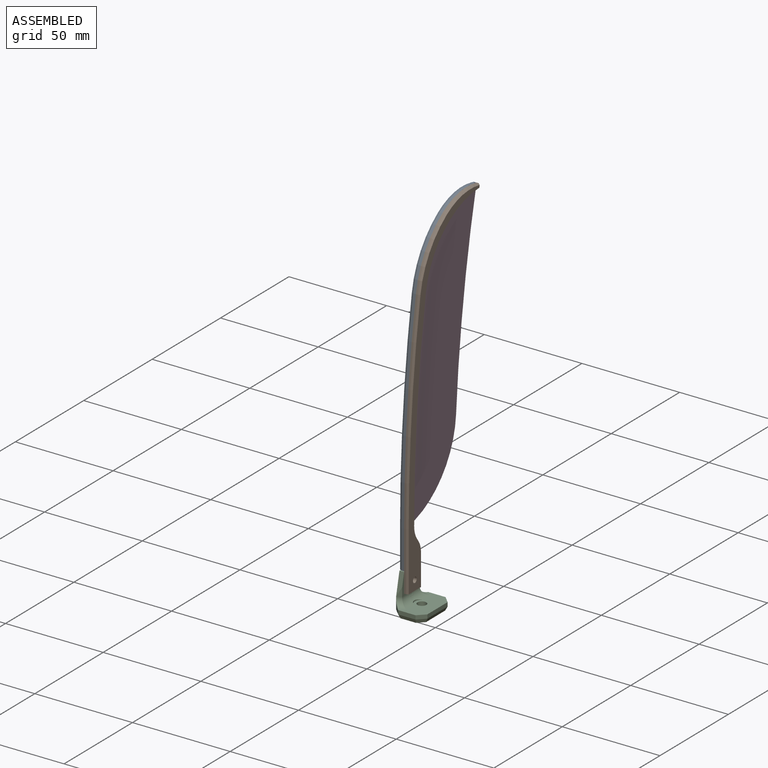
[diagram: assembled view]
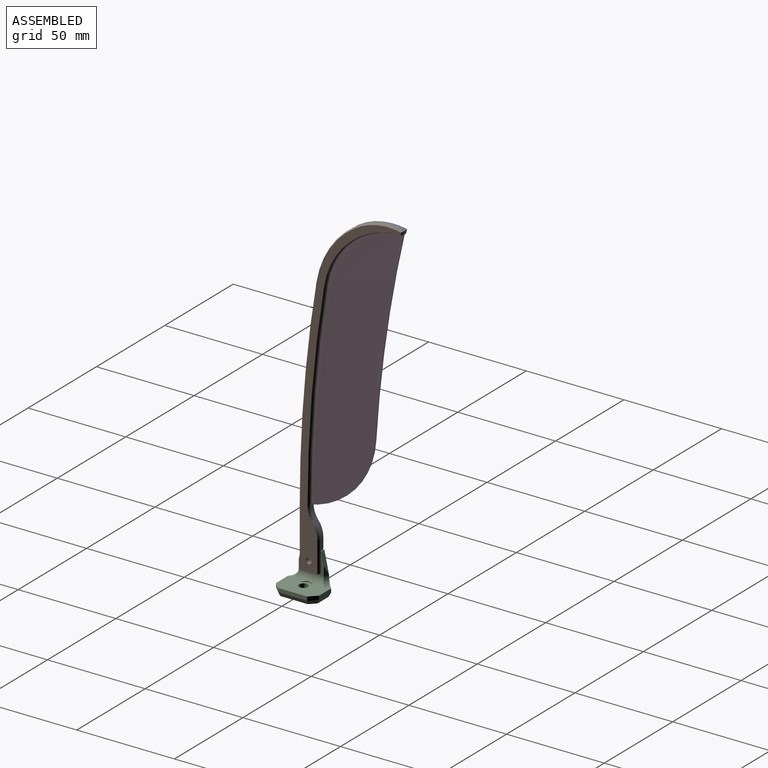
[diagram: assembled view, second angle]
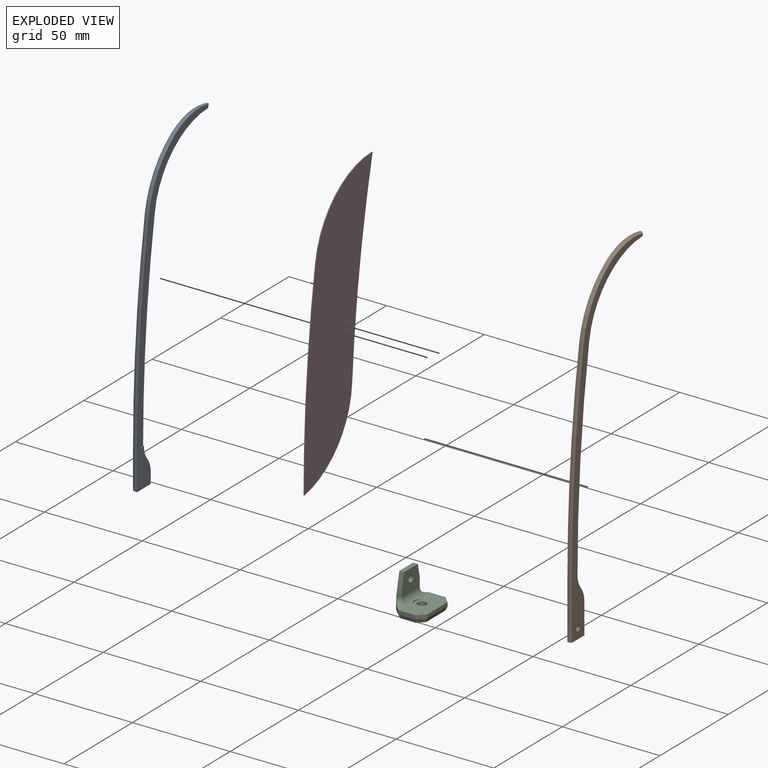
[diagram: exploded view]
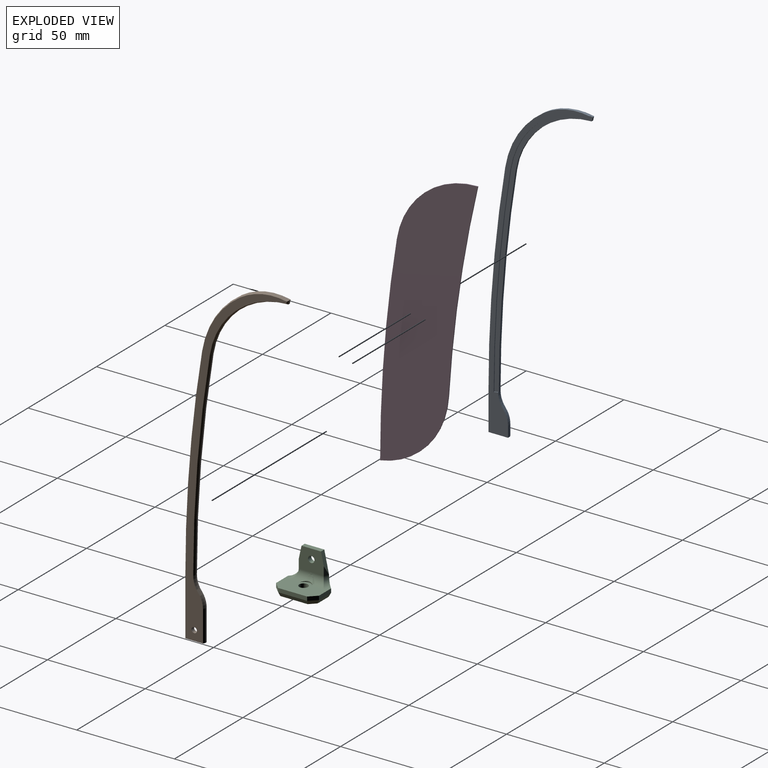
[diagram: exploded view, second angle]
ASSEMBLY  parts=4 mates=3
PART A: 29 faces, bbox 2.4x53x160.4 mm
  f0: plane 140.63x50.3mm, normal (1,0,0), area 374.7mm2, adj f6,f7,f8,f9,f13,f14,f15,f16
  f1: plane 19.6x1.4mm, normal (0,-1,0), area 27.4mm2, adj f2,f11,f17,f19
  f2: plane 10x2.4mm, normal (0,0,-1), area 23.5mm2, adj f1,f3,f12,f17,f19,f28
  f3: plane 5.6x1.4mm, normal (0,1,0), area 7.8mm2, adj f2,f4,f17,f28
  f4: cylinder r=11.05mm len=7mm, axis (-1,0,0), area 10.6mm2, adj f3,f5,f17,f27
  f5: cylinder r=11.05mm len=7.08mm, axis (-1,0,0), area 10.6mm2, adj f4,f6,f13,f17,f18,f26
  f6: cylinder r=644.25mm len=104.49mm, axis (-1,0,0), area 105mm2, adj f0,f5,f7,f18,f25
  f7: cylinder r=40mm len=39mm, axis (-1,0,0), area 55.8mm2, adj f0,f6,f8,f24
  f8: cylinder r=612.47mm len=2mm, axis (-1,0,0), area 2.1mm2, adj f0,f7,f9,f23
  f9: cylinder r=32mm len=24.94mm, axis (-1,0,0), area 35.9mm2, adj f0,f8,f10,f16,f17,f22
  f10: cylinder r=45mm len=30.16mm, axis (-1,0,0), area 51.7mm2, adj f9,f11,f17,f21
  f11: cylinder r=649.25mm len=105.3mm, axis (-1,0,0), area 148.1mm2, adj f1,f10,f17,f20
  f12: plane 159.92x51.9mm, normal (-1,0,0), area 774.6mm2, adj f2,f19,f20,f21,f22,f23,f24,f25
  f13: cylinder r=42.3mm len=2.3mm, axis (-1,0,0), area 0.9mm2, adj f0,f5,f14,f17,f18
  f14: plane 0.4x0.35mm, normal (0,1,0), area 0.1mm2, adj f0,f13,f15,f17
  f15: cylinder r=646.55mm len=104.86mm, axis (-1,0,0), area 42.1mm2, adj f0,f14,f16,f17
  f16: cylinder r=42.3mm len=40.4mm, axis (-1,0,0), area 23.3mm2, adj f0,f9,f15,f17
  f17: plane 160.42x51.66mm, normal (1,0,0), area 585.3mm2, adj f1,f2,f3,f4,f5,f9,f10,f11
  f18: plane 0.08x0mm, normal (-1,0,0), area 0mm2, adj f5,f6,f13
  f19: plane 19.6x1mm, normal (-0.45,-0.89,0), area 21.9mm2, adj f1,f2,f12,f20
  f20: cone r=649.25mm half-angle=26.6deg, axis (1,0,0), area 118.2mm2, adj f11,f12,f19,f21
  f21: cone r=45mm half-angle=26.6deg, axis (1,0,0), area 41.1mm2, adj f10,f12,f20,f22
  f22: cone r=32mm half-angle=26.6deg, axis (1,0,0), area 28.6mm2, adj f9,f12,f21,f23
  f23: cone r=612.97mm half-angle=26.6deg, axis (-1,0,0), area 1.8mm2, adj f8,f12,f22,f24
  f24: cone r=40.5mm half-angle=26.6deg, axis (-1,0,0), area 62.6mm2, adj f7,f12,f23,f25
  f25: cone r=644.75mm half-angle=26.6deg, axis (-1,0,0), area 117.4mm2, adj f6,f12,f24,f26
  f26: cone r=11.55mm half-angle=26.6deg, axis (-1,0,0), area 8.7mm2, adj f5,f12,f25,f27
  f27: cone r=11.05mm half-angle=26.6deg, axis (1,0,0), area 8.3mm2, adj f4,f12,f26,f28
  f28: plane 5.6x1mm, normal (-0.45,0.89,0), area 6.3mm2, adj f2,f3,f12,f27
PART B: 24 faces, bbox 2x53x170.8 mm
  f0: plane 2x1mm, normal (0,0.97,-0.23), area 2.1mm2, adj f1,f11,f13,f18
  f1: cylinder r=32mm len=24.94mm, axis (-1,0,0), area 26.1mm2, adj f0,f2,f13,f17
  f2: cylinder r=45mm len=30.16mm, axis (-1,0,0), area 36.9mm2, adj f1,f3,f13,f16
  f3: cylinder r=649.25mm len=105.3mm, axis (-1,0,0), area 105.8mm2, adj f2,f4,f13,f15
  f4: plane 30x1mm, normal (0,-1,0), area 30mm2, adj f3,f5,f13,f14
  f5: plane 10x2mm, normal (0,0,-1), area 19.5mm2, adj f4,f6,f12,f13,f14,f23
  f6: plane 16x1mm, normal (0,1,0), area 16mm2, adj f5,f7,f13,f23
  f7: cylinder r=11.05mm len=7mm, axis (-1,0,0), area 7.6mm2, adj f6,f8,f13,f22
  f8: cylinder r=11.05mm len=7mm, axis (-1,0,0), area 7.6mm2, adj f7,f9,f13,f21
  f9: cylinder r=644.25mm len=104.49mm, axis (-1,0,0), area 105mm2, adj f8,f11,f13,f20
  f10: cylinder r=1.4mm len=2.8mm, axis (-1,0,0), area 17.6mm2, adj f12,f13
  f11: cylinder r=40mm len=39mm, axis (-1,0,0), area 55.8mm2, adj f0,f9,f13,f19
  f12: plane 170.32x51.9mm, normal (1,0,0), area 862mm2, adj f5,f10,f14,f15,f16,f17,f18,f19
  f13: plane 170.82x53mm, normal (-1,0,0), area 1057.9mm2, adj f0,f1,f2,f3,f4,f5,f6,f7
  f14: plane 30x1mm, normal (0.45,-0.89,0), area 33.5mm2, adj f4,f5,f12,f15
  f15: cone r=648.75mm half-angle=26.6deg, axis (-1,0,0), area 118.2mm2, adj f3,f12,f14,f16
  f16: cone r=44.5mm half-angle=26.6deg, axis (-1,0,0), area 41.1mm2, adj f2,f12,f15,f17
  f17: cone r=31.5mm half-angle=26.6deg, axis (-1,0,0), area 28.6mm2, adj f1,f12,f16,f18
  f18: plane 2.01x1mm, normal (0.45,0.87,-0.2), area 1.8mm2, adj f0,f12,f17,f19
  f19: cone r=40mm half-angle=26.6deg, axis (1,0,0), area 62.6mm2, adj f11,f12,f18,f20
  f20: cone r=644.25mm half-angle=26.6deg, axis (1,0,0), area 117.4mm2, adj f9,f12,f19,f21
  f21: cone r=11.05mm half-angle=26.6deg, axis (1,0,0), area 8.7mm2, adj f8,f12,f20,f22
  f22: cone r=10.55mm half-angle=26.6deg, axis (-1,0,0), area 8.3mm2, adj f7,f12,f21,f23
  f23: plane 16x1mm, normal (0.45,0.89,0), area 17.9mm2, adj f5,f6,f12,f22
PART C: 32 faces, bbox 16.7x22.9x19.7 mm
  f0: cylinder r=4mm len=7.51mm, axis (0,1,0), area 37.1mm2, adj f1,f5,f8,f18,f22
  f1: bspline ~4.21x4.19mm, area 13mm2, adj f0,f2,f5,f22
  f2: cylinder r=4mm len=7.51mm, axis (0,1,0), area 37.1mm2, adj f1,f5,f8,f19,f22
  f3: plane 17x14.83mm, normal (-1,0,0), area 217mm2, adj f7,f10,f11,f20,f21,f23,f25
  f4: plane 4.53x2.4mm, normal (0.38,-0.92,0), area 5.9mm2, adj f5,f19,f20
  f5: plane 12.84x11.05mm, normal (1,0,0), area 123.6mm2, adj f0,f1,f2,f4,f6,f7,f20,f21
  f6: plane 4.53x2.4mm, normal (0.38,0.92,0), area 5.9mm2, adj f5,f18,f21
  f7: plane 10x2.4mm, normal (0,0,1), area 24mm2, adj f3,f5,f20,f21
  f8: plane 22x12.94mm, normal (0,0,1), area 200.7mm2, adj f0,f2,f9,f10,f11,f12,f13,f14
  f9: plane 8.83x2mm, normal (0,1,0), area 17.7mm2, adj f8,f10,f16,f26
  f10: plane 6.7x4.28mm, normal (-0.71,0.71,0), area 13.9mm2, adj f3,f8,f9,f18,f24
  f11: plane 6.7x4.28mm, normal (-0.71,-0.71,0), area 13.9mm2, adj f3,f8,f12,f19,f27
  f12: plane 8.83x2mm, normal (0,-1,0), area 17.7mm2, adj f8,f11,f13,f29
  f13: plane 3.59x3.59mm, normal (0.71,-0.71,0), area 10.1mm2, adj f8,f12,f14,f31
  f14: plane 14.83x2mm, normal (1,0,0), area 29.7mm2, adj f8,f13,f16,f30
  f15: cylinder r=2.25mm len=4.5mm, axis (0,0,-1), area 56.5mm2, adj f8,f17
  f16: plane 3.59x3.59mm, normal (0.71,0.71,0), area 10.1mm2, adj f8,f9,f14,f28
  f17: plane 20x14mm, normal (0,0,-1), area 246.1mm2, adj f15,f24,f25,f26,f27,f28,f29,f30
  f18: cylinder r=4mm len=6.4mm, axis (-0.92,0.38,0), area 19.5mm2, adj f0,f6,f8,f10
  f19: cylinder r=4mm len=6.4mm, axis (0.92,0.38,0), area 19.5mm2, adj f2,f4,f8,f11
  f20: plane 11x2.41mm, normal (0,-0.98,0.21), area 21.5mm2, adj f3,f4,f5,f7
  f21: plane 11x2.41mm, normal (0,0.98,0.21), area 21.5mm2, adj f3,f5,f6,f7
  f22: cylinder r=3.75mm len=6.78mm, axis (0,0,-1), area 2.5mm2, adj f0,f1,f2,f8
  f23: cylinder r=1.65mm len=3.3mm, axis (-1,0,0), area 24.9mm2, adj f3,f5
  f24: plane 4x4mm, normal (-0.63,0.63,-0.45), area 10.4mm2, adj f10,f17,f25,f26
  f25: plane 14.83x2mm, normal (-0.89,0,-0.45), area 32.2mm2, adj f3,f17,f24,f27
  f26: plane 8.83x2mm, normal (0,0.89,-0.45), area 18.8mm2, adj f9,f17,f24,f28
  f27: plane 4x4mm, normal (-0.63,-0.63,-0.45), area 10.4mm2, adj f11,f17,f25,f29
  f28: plane 4x4mm, normal (0.63,0.63,-0.45), area 10.4mm2, adj f16,f17,f26,f30
  f29: plane 8.83x2mm, normal (0,-0.89,-0.45), area 18.8mm2, adj f12,f17,f27,f31
  f30: plane 14.83x2mm, normal (0.89,0,-0.45), area 32.2mm2, adj f14,f17,f28,f31
  f31: plane 4x4mm, normal (0.63,-0.63,-0.45), area 10.4mm2, adj f13,f17,f29,f30
PART D: 6 faces, bbox 0.4x50x140 mm
  f0: cylinder r=612.47mm len=101.23mm, axis (-1,0,0), area 41mm2, adj f1,f3,f4,f5
  f1: cylinder r=42mm len=41.44mm, axis (-1,0,0), area 23.7mm2, adj f0,f2,f4,f5
  f2: cylinder r=646.25mm len=104.81mm, axis (-1,0,0), area 42.1mm2, adj f1,f3,f4,f5
  f3: cylinder r=42mm len=38.77mm, axis (-1,0,0), area 22.6mm2, adj f0,f2,f4,f5
  f4: plane 140x50mm, normal (1,0,0), area 4203.5mm2, adj f0,f1,f2,f3
  f5: plane 140x50mm, normal (-1,0,0), area 4203.5mm2, adj f0,f1,f2,f3
PLACE A t=(-17.82,2.24,29.36)mm
PLACE B t=(-15.42,2.24,29.36)mm
PLACE C t=(-9.82,4.24,10.36)mm
PLACE D t=(-15.82,2.24,29.36)mm
MATE fastened A.f7 <-> D.f1  axis (1,0,0) through (-15.82,52.24,147.36)mm
MATE fastened B.f10 <-> C.f23  axis (-1,0,0) through (-15.42,4.24,24.36)mm
MATE fastened A.f7 <-> B.f2  axis (1,0,0) through (-15.42,52.24,147.36)mm
